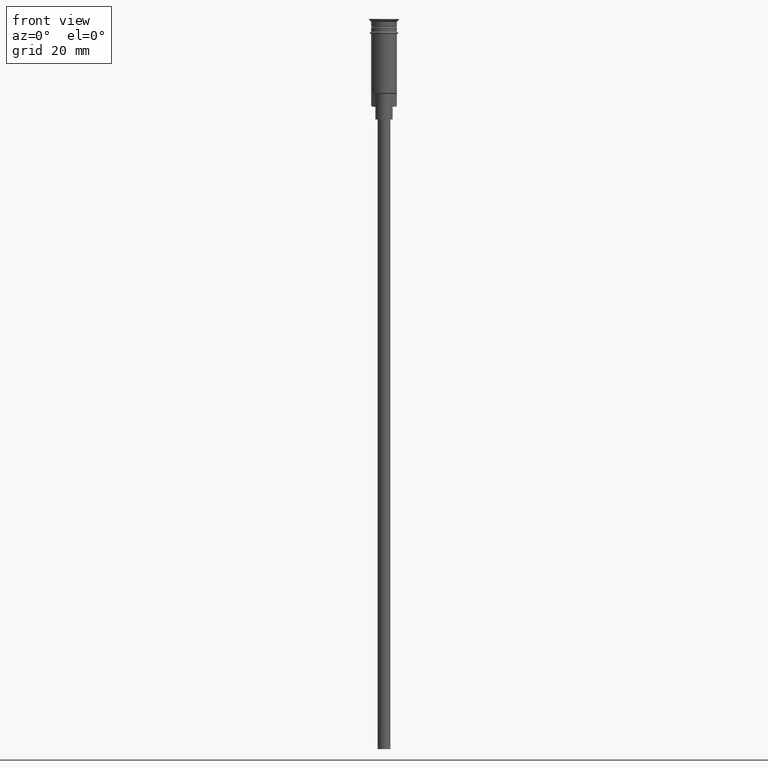
[diagram: clean part render]
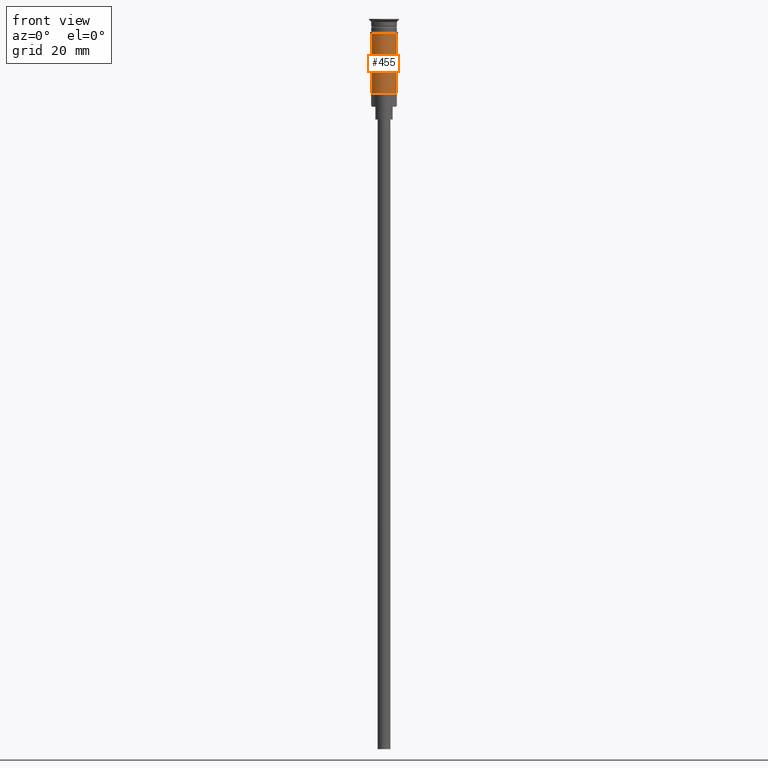
[diagram: same view with one face highlighted and labeled with its STEP entity id]
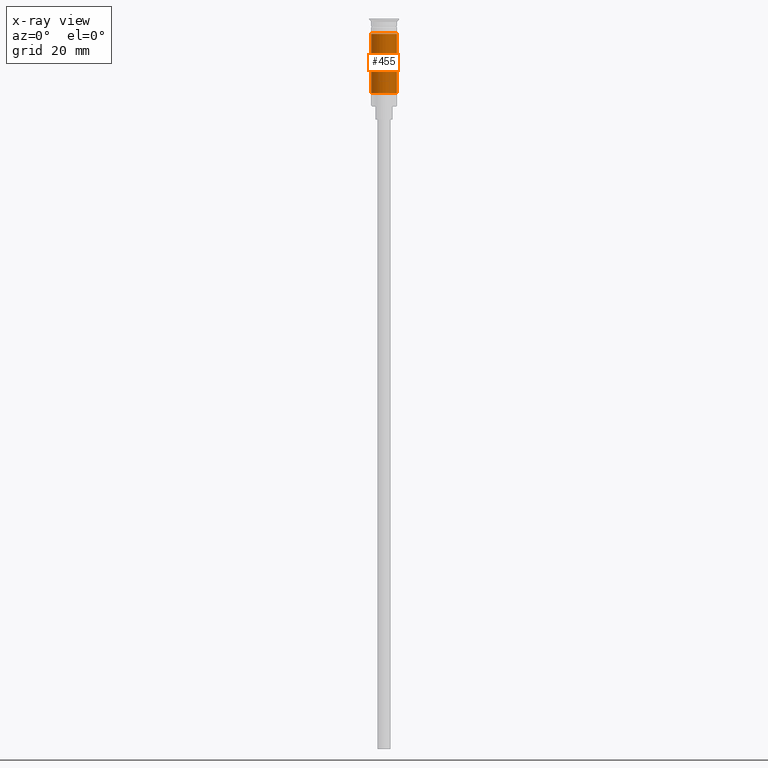
[diagram: x-ray of the same camera — body ghosted, the highlighted face saturated]
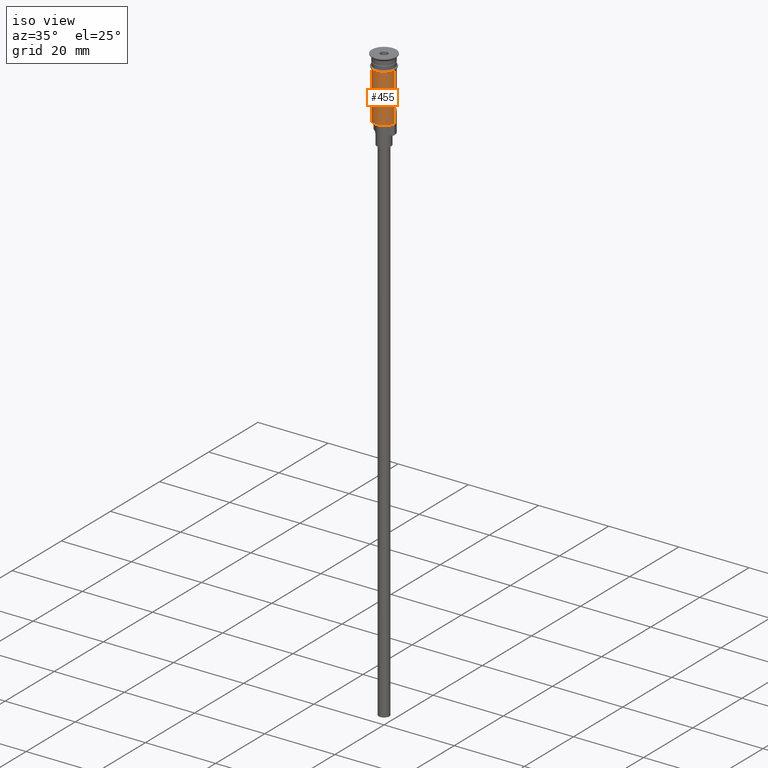
[diagram: same view with one face highlighted and labeled with its STEP entity id]
A machine part, front view. The second image highlights one B-rep face of the part: STEP entity #455.
The next image is the same camera in x-ray: the body ghosted, the highlighted face saturated — about 0% of this face is hidden behind the body in this view.
A second angle (iso view) of the same face is appended — the face is thin or edge-on in the first view.
In plain terms, the highlighted cylindrical surface (edge-blend (fillet) strip) has radius 3 mm, axis along (-0, -0, 1).
Its self-contained STEP definition (entity closure, byte-faithful):
#3 = ORIENTED_EDGE ( 'NONE', *, *, #1226, .F. ) ;
#53 = ORIENTED_EDGE ( 'NONE', *, *, #332, .T. ) ;
#90 = FACE_OUTER_BOUND ( 'NONE', #1202, .T. ) ;
#195 = DIRECTION ( 'NONE',  ( -0.000000000000000000, -0.000000000000000000, 1.000000000000000000 ) ) ;
#278 = VERTEX_POINT ( 'NONE', #961 ) ;
#279 = DIRECTION ( 'NONE',  ( -0.000000000000000000, -0.000000000000000000, 1.000000000000000000 ) ) ;
#299 = VERTEX_POINT ( 'NONE', #973 ) ;
#332 = EDGE_CURVE ( 'NONE', #650, #278, #1122, .T. ) ;
#351 = LINE ( 'NONE', #1361, #1539 ) ;
#357 = CARTESIAN_POINT ( 'NONE',  ( 0.000000000000000000, 0.000000000000000000, -3.499999999999998668 ) ) ;
#379 = CARTESIAN_POINT ( 'NONE',  ( -2.999999999999999112, 3.673940397442058389E-16, -3.499999999999998668 ) ) ;
#455 = ADVANCED_FACE ( 'NONE', ( #90 ), #1005, .T. ) ;
#458 = VERTEX_POINT ( 'NONE', #379 ) ;
#552 = CARTESIAN_POINT ( 'NONE',  ( -2.999999999999995115, 0.000000000000000000, -17.30000000000000782 ) ) ;
#564 = LINE ( 'NONE', #1085, #1591 ) ;
#644 = DIRECTION ( 'NONE',  ( -0.000000000000000000, -0.000000000000000000, 1.000000000000000000 ) ) ;
#650 = VERTEX_POINT ( 'NONE', #552 ) ;
#731 = AXIS2_PLACEMENT_3D ( 'NONE', #357, #733, #1234 ) ;
#733 = DIRECTION ( 'NONE',  ( -0.000000000000000000, -0.000000000000000000, 1.000000000000000000 ) ) ;
#747 = DIRECTION ( 'NONE',  ( 1.000000000000000000, 0.000000000000000000, 0.000000000000000000 ) ) ;
#773 = DIRECTION ( 'NONE',  ( -1.000000000000000000, 0.000000000000000000, 0.000000000000000000 ) ) ;
#934 = EDGE_CURVE ( 'NONE', #458, #299, #1253, .T. ) ;
#957 = EDGE_CURVE ( 'NONE', #278, #299, #351, .T. ) ;
#961 = CARTESIAN_POINT ( 'NONE',  ( 2.999999999999996891, 3.673940397442055924E-16, -17.30000000000000782 ) ) ;
#973 = CARTESIAN_POINT ( 'NONE',  ( 2.999999999999998668, 0.000000000000000000, -3.499999999999998668 ) ) ;
#991 = ORIENTED_EDGE ( 'NONE', *, *, #957, .T. ) ;
#1005 = CYLINDRICAL_SURFACE ( 'NONE', #1587, 2.999999999999996891 ) ;
#1073 = AXIS2_PLACEMENT_3D ( 'NONE', #1525, #279, #773 ) ;
#1085 = CARTESIAN_POINT ( 'NONE',  ( -2.999999999999996891, 3.673940397442055924E-16, 0.000000000000000000 ) ) ;
#1089 = DIRECTION ( 'NONE',  ( -0.000000000000000000, -0.000000000000000000, 1.000000000000000000 ) ) ;
#1122 = CIRCLE ( 'NONE', #1073, 2.999999999999996891 ) ;
#1194 = ORIENTED_EDGE ( 'NONE', *, *, #934, .F. ) ;
#1202 = EDGE_LOOP ( 'NONE', ( #3, #53, #991, #1194 ) ) ;
#1226 = EDGE_CURVE ( 'NONE', #650, #458, #564, .T. ) ;
#1234 = DIRECTION ( 'NONE',  ( 1.000000000000000000, 0.000000000000000000, 0.000000000000000000 ) ) ;
#1253 = CIRCLE ( 'NONE', #731, 2.999999999999998668 ) ;
#1361 = CARTESIAN_POINT ( 'NONE',  ( 2.999999999999996891, 0.000000000000000000, 0.000000000000000000 ) ) ;
#1525 = CARTESIAN_POINT ( 'NONE',  ( 0.000000000000000000, 0.000000000000000000, -17.30000000000000782 ) ) ;
#1539 = VECTOR ( 'NONE', #644, 1000.000000000000000 ) ;
#1567 = CARTESIAN_POINT ( 'NONE',  ( 0.000000000000000000, 0.000000000000000000, 0.000000000000000000 ) ) ;
#1587 = AXIS2_PLACEMENT_3D ( 'NONE', #1567, #1089, #747 ) ;
#1591 = VECTOR ( 'NONE', #195, 1000.000000000000000 ) ;